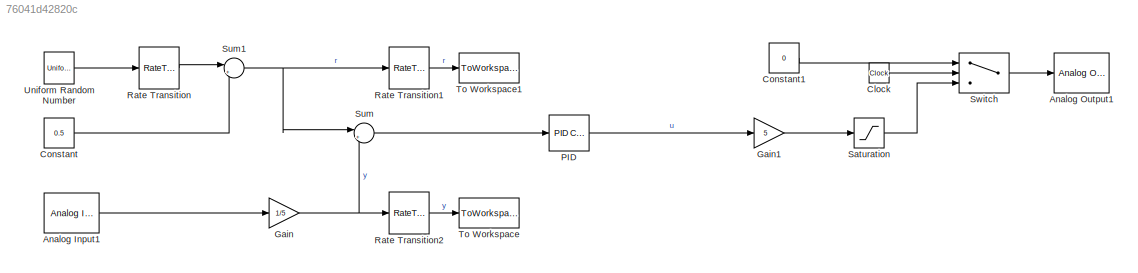
MODEL slx_76041d42820c
KIND model
CONFIG AbsTol = auto
CONFIG EnableMultiTasking = off
CONFIG FixedStep = 1e-4
CONFIG MaxStep = auto
CONFIG MinStep = auto
CONFIG RelTol = 1e-3
CONFIG SampleTimeConstraint = Unconstrained
CONFIG SolverName = FixedStepDiscrete
CONFIG StartTime = 0.0
CONFIG StopTime = 60
BLOCK [Reference] Analog Input1  REF=sldrtlib/Analog Input
  AttributesFormatString = Humusoft\nAD622 [auto]
  Ports = [0, 1]
  SourceBlock = sldrtlib/Analog Input
  SourceProductBaseCode = WT
  SourceType = Simulink Desktop Real-Time Analog Input
BLOCK [Reference] Analog Output1  REF=sldrtlib/Analog Output
  AttributesFormatString = Humusoft\nAD622 [auto]
  Ports = [1]
  SourceBlock = sldrtlib/Analog Output
  SourceProductBaseCode = WT
  SourceType = Simulink Desktop Real-Time Analog Output
BLOCK [Clock] Clock
BLOCK [Constant] Constant
  Value = 0.5
BLOCK [Constant] Constant1
  Value = 0
BLOCK [Gain] Gain
  Gain = 1/5
BLOCK [Gain] Gain1
  Gain = 5
BLOCK [Reference] PID  REF=slpidlib/PID Controller
  Ports = [1, 1]
  SourceBlock = slpidlib/PID Controller
  SourceProductBaseCode = SL
  SourceType = PID 1dof
BLOCK [RateTransition] Rate Transition
  OutPortSampleTime = 0.0001
BLOCK [RateTransition] Rate Transition1
  OutPortSampleTime = 0.001
BLOCK [RateTransition] Rate Transition2
  OutPortSampleTime = 0.001
BLOCK [Saturate] Saturation
  LowerLimit = 0
  UpperLimit = 5
BLOCK [Sum] Sum
  Inputs = |+-
  Ports = [2, 1]
BLOCK [Sum] Sum1
  Inputs = |++
  Ports = [2, 1]
BLOCK [Switch] Switch
  Criteria = u2 > Threshold
  InputSameDT = off
  SaturateOnIntegerOverflow = off
  Threshold = 59.9
BLOCK [ToWorkspace] To Workspace
  MaxDataPoints = inf
  Ports = [1]
  SampleTime = 0.001
  SaveFormat = Timeseries
  VariableName = y
BLOCK [ToWorkspace] To Workspace1
  FixptAsFi = on
  MaxDataPoints = inf
  Ports = [1]
  SampleTime = 0.001
  SaveFormat = Timeseries
  VariableName = r
BLOCK [UniformRandomNumber] Uniform Random Number
  Maximum = 0.2
  Minimum = -0.4
  SampleTime = 5
LINE Analog Input1:1 -> Gain:1
LINE Clock:1 -> Switch:2
LINE Constant1:1 -> Switch:1
LINE Constant:1 -> Sum1:2
LINE Gain1:1 -> Saturation:1
NET Gain:1 -> Rate Transition2:1, Sum:2
LINE PID:1 -> Gain1:1
LINE Rate Transition1:1 -> To Workspace1:1
LINE Rate Transition2:1 -> To Workspace:1
LINE Rate Transition:1 -> Sum1:1
LINE Saturation:1 -> Switch:3
NET Sum1:1 -> Rate Transition1:1, Sum:1
LINE Sum:1 -> PID:1
LINE Switch:1 -> Analog Output1:1
LINE Uniform Random Number:1 -> Rate Transition:1
note: NET lines group one-source signal fan-out (src -> all destinations, sorted); 1:1 wires keep LINE
